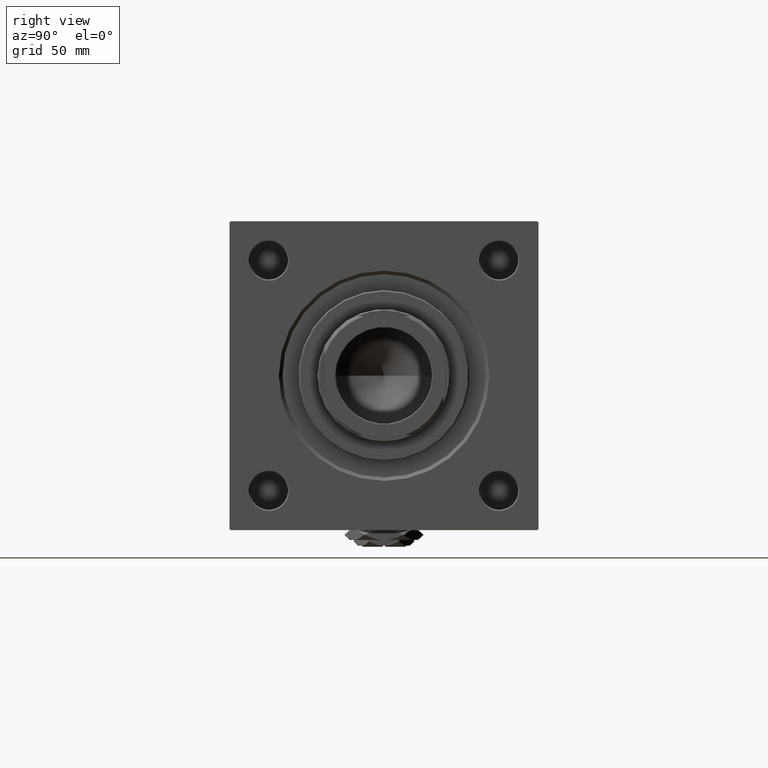
[diagram: clean part render]
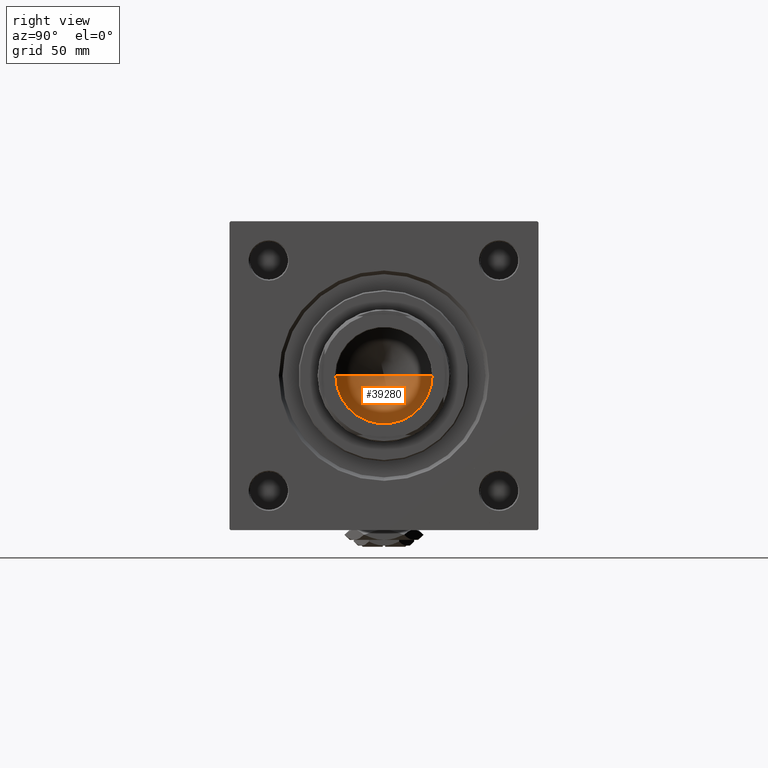
[diagram: same view with one face highlighted and labeled with its STEP entity id]
A machine part, right view. The second image highlights one B-rep face of the part: STEP entity #39280.
In plain terms, the highlighted conical surface has half-angle 59 deg.
Its self-contained STEP definition (entity closure, byte-faithful):
#449 = CARTESIAN_POINT ( 'NONE',  ( -1.584115414415908206E-14, 0.000000000000000000, 104.8325724646918928 ) ) ;
#916 = ORIENTED_EDGE ( 'NONE', *, *, #37588, .T. ) ;
#1104 = VECTOR ( 'NONE', #34269, 1000.000000000000000 ) ;
#1349 = DIRECTION ( 'NONE',  ( -0.000000000000000000, -0.000000000000000000, 1.000000000000000000 ) ) ;
#1859 = AXIS2_PLACEMENT_3D ( 'NONE', #30466, #1349, #33940 ) ;
#4044 = EDGE_CURVE ( 'NONE', #44447, #25907, #49516, .T. ) ;
#6091 = AXIS2_PLACEMENT_3D ( 'NONE', #27402, #43705, #7121 ) ;
#7121 = DIRECTION ( 'NONE',  ( 1.000000000000000000, 0.000000000000000000, 0.000000000000000000 ) ) ;
#7735 = CARTESIAN_POINT ( 'NONE',  ( 20.24999999999998934, 0.000000000000000000, 117.0000000000000142 ) ) ;
#8933 = CARTESIAN_POINT ( 'NONE',  ( -20.24999999999998934, 2.479909768273389117E-15, 117.0000000000000142 ) ) ;
#11117 = FACE_OUTER_BOUND ( 'NONE', #29818, .T. ) ;
#13176 = CARTESIAN_POINT ( 'NONE',  ( -20.24999999999998934, 2.479909768273389117E-15, 117.0000000000000142 ) ) ;
#14197 = ORIENTED_EDGE ( 'NONE', *, *, #24198, .T. ) ;
#20575 = VERTEX_POINT ( 'NONE', #26154 ) ;
#24198 = EDGE_CURVE ( 'NONE', #20575, #25907, #47950, .T. ) ;
#25907 = VERTEX_POINT ( 'NONE', #8933 ) ;
#26154 = CARTESIAN_POINT ( 'NONE',  ( 20.24999999999998934, 0.000000000000000000, 117.0000000000000142 ) ) ;
#27402 = CARTESIAN_POINT ( 'NONE',  ( 0.000000000000000000, 0.000000000000000000, 117.0000000000000142 ) ) ;
#28802 = LINE ( 'NONE', #7735, #49474 ) ;
#29818 = EDGE_LOOP ( 'NONE', ( #35632, #916, #14197 ) ) ;
#30466 = CARTESIAN_POINT ( 'NONE',  ( 0.000000000000000000, 0.000000000000000000, 117.0000000000000142 ) ) ;
#32531 = CONICAL_SURFACE ( 'NONE', #6091, 20.24999999999998934, 1.029744258676652979 ) ;
#33940 = DIRECTION ( 'NONE',  ( 1.000000000000000000, 0.000000000000000000, 0.000000000000000000 ) ) ;
#34269 = DIRECTION ( 'NONE',  ( -0.8571673007021115565, 1.049727191138617710E-16, 0.5150380749100554878 ) ) ;
#35632 = ORIENTED_EDGE ( 'NONE', *, *, #4044, .F. ) ;
#36825 = DIRECTION ( 'NONE',  ( 0.8571673007021115565, 0.000000000000000000, 0.5150380749100554878 ) ) ;
#37588 = EDGE_CURVE ( 'NONE', #44447, #20575, #28802, .T. ) ;
#39280 = ADVANCED_FACE ( 'NONE', ( #11117 ), #32531, .F. ) ;
#43705 = DIRECTION ( 'NONE',  ( -0.000000000000000000, -0.000000000000000000, 1.000000000000000000 ) ) ;
#44447 = VERTEX_POINT ( 'NONE', #449 ) ;
#47950 = CIRCLE ( 'NONE', #1859, 20.24999999999998934 ) ;
#49474 = VECTOR ( 'NONE', #36825, 1000.000000000000000 ) ;
#49516 = LINE ( 'NONE', #13176, #1104 ) ;